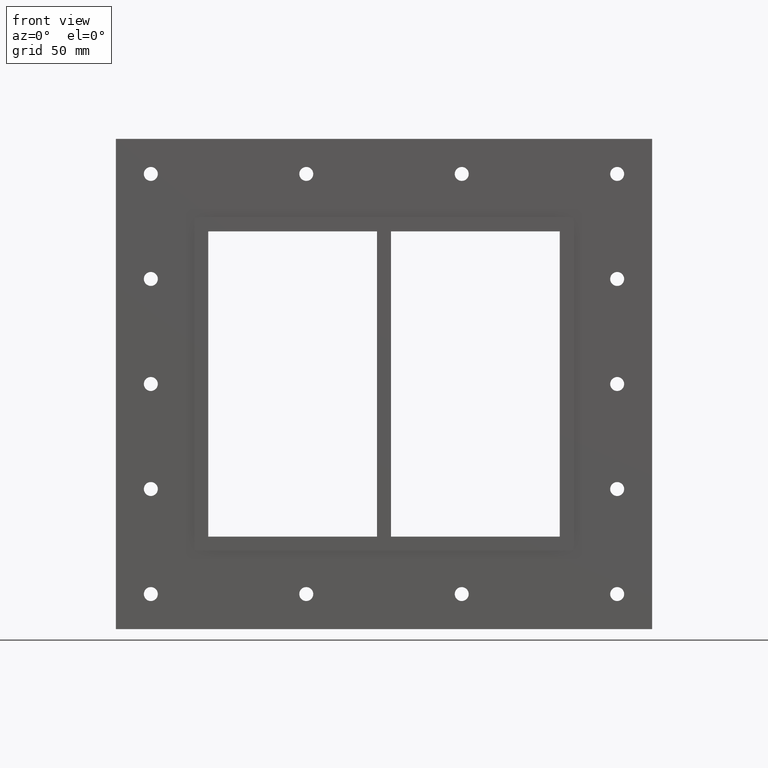
[diagram: clean part render]
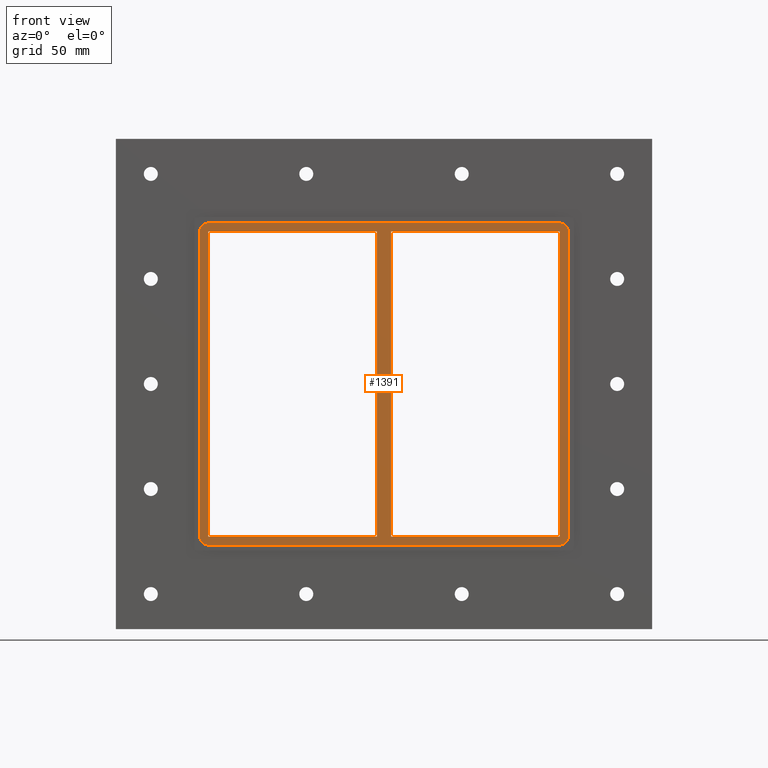
[diagram: same view with one face highlighted and labeled with its STEP entity id]
A machine part, front view. The second image highlights one B-rep face of the part: STEP entity #1391.
In plain terms, the highlighted planar face has unit normal (0, 1, 0).
Its self-contained STEP definition (entity closure, byte-faithful):
#465=CARTESIAN_POINT('',(-5.000000000001332,-3.0,-109.00000000000003));
#466=VERTEX_POINT('',#465);
#467=CARTESIAN_POINT('',(-5.000000000001368,-3.0,108.99999999999999));
#468=VERTEX_POINT('',#467);
#469=CARTESIAN_POINT('',(-5.000000000001332,-3.0,-109.00000000000003));
#470=DIRECTION('',(0.0,0.0,1.0));
#471=VECTOR('',#470,218.0);
#472=LINE('',#469,#471);
#473=EDGE_CURVE('',#466,#468,#472,.T.);
#505=CARTESIAN_POINT('',(5.0,-3.0,108.99999999999999));
#506=VERTEX_POINT('',#505);
#507=CARTESIAN_POINT('',(5.0,-3.0,-108.9999999999818));
#508=VERTEX_POINT('',#507);
#509=CARTESIAN_POINT('',(5.0,-3.0,108.99999999999999));
#510=DIRECTION('',(0.0,0.0,-1.0));
#511=VECTOR('',#510,217.99999999998178);
#512=LINE('',#509,#511);
#513=EDGE_CURVE('',#506,#508,#512,.T.);
#554=CARTESIAN_POINT('',(-125.50000000000003,-3.0,-109.00000000000003));
#555=VERTEX_POINT('',#554);
#562=CARTESIAN_POINT('',(-5.000000000001329,-3.0,-109.00000000000003));
#563=DIRECTION('',(-1.0,0.0,0.0));
#564=VECTOR('',#563,120.49999999999869);
#565=LINE('',#562,#564);
#566=EDGE_CURVE('',#466,#555,#565,.T.);
#577=CARTESIAN_POINT('',(125.49999999999999,-3.0,-109.00000000000003));
#578=VERTEX_POINT('',#577);
#579=CARTESIAN_POINT('',(125.49999999999999,-3.0,-109.00000000000003));
#580=DIRECTION('',(-1.0,0.0,0.0));
#581=VECTOR('',#580,120.49999999999999);
#582=LINE('',#579,#581);
#583=EDGE_CURVE('',#578,#508,#582,.T.);
#616=CARTESIAN_POINT('',(125.49999999999999,-3.0,108.99999999999999));
#617=VERTEX_POINT('',#616);
#624=CARTESIAN_POINT('',(5.0,-3.0,108.99999999999999));
#625=DIRECTION('',(1.0,0.0,0.0));
#626=VECTOR('',#625,120.5);
#627=LINE('',#624,#626);
#628=EDGE_CURVE('',#506,#617,#627,.T.);
#639=CARTESIAN_POINT('',(-125.50000000000003,-3.0,108.99999999999999));
#640=VERTEX_POINT('',#639);
#641=CARTESIAN_POINT('',(-125.50000000000003,-3.0,108.99999999999999));
#642=DIRECTION('',(1.0,0.0,0.0));
#643=VECTOR('',#642,120.49999999999866);
#644=LINE('',#641,#643);
#645=EDGE_CURVE('',#640,#468,#644,.T.);
#1049=CARTESIAN_POINT('',(-125.5,-3.0,-109.00000000000003));
#1050=DIRECTION('',(0.0,0.0,1.0));
#1051=VECTOR('',#1050,218.0);
#1052=LINE('',#1049,#1051);
#1053=EDGE_CURVE('',#555,#640,#1052,.T.);
#1064=CARTESIAN_POINT('',(125.50000000000003,-3.0,115.0));
#1065=VERTEX_POINT('',#1064);
#1072=CARTESIAN_POINT('',(131.5,-3.0,109.0));
#1073=VERTEX_POINT('',#1072);
#1074=CARTESIAN_POINT('',(125.5,-3.0,109.0));
#1075=DIRECTION('',(0.0,1.0,0.0));
#1076=DIRECTION('',(0.70710678118655,0.0,0.707106781186545));
#1077=AXIS2_PLACEMENT_3D('',#1074,#1075,#1076);
#1078=CIRCLE('',#1077,6.000000000000001);
#1079=EDGE_CURVE('',#1065,#1073,#1078,.T.);
#1129=CARTESIAN_POINT('',(131.5,-3.0,-108.99999999999999));
#1130=VERTEX_POINT('',#1129);
#1131=CARTESIAN_POINT('',(131.5,-3.0,-109.0));
#1132=DIRECTION('',(0.0,0.0,1.0));
#1133=VECTOR('',#1132,218.0);
#1134=LINE('',#1131,#1133);
#1135=EDGE_CURVE('',#1130,#1073,#1134,.T.);
#1176=CARTESIAN_POINT('',(-125.5,-3.0,115.0));
#1177=VERTEX_POINT('',#1176);
#1184=CARTESIAN_POINT('',(125.5,-3.0,115.0));
#1185=DIRECTION('',(-1.0,0.0,0.0));
#1186=VECTOR('',#1185,251.0);
#1187=LINE('',#1184,#1186);
#1188=EDGE_CURVE('',#1065,#1177,#1187,.T.);
#1201=CARTESIAN_POINT('',(125.5,-3.0,-115.0));
#1202=VERTEX_POINT('',#1201);
#1203=CARTESIAN_POINT('',(125.5,-3.0,-108.99999999999999));
#1204=DIRECTION('',(0.0,1.0,0.0));
#1205=DIRECTION('',(0.707106781186548,0.0,-0.707106781186548));
#1206=AXIS2_PLACEMENT_3D('',#1203,#1204,#1205);
#1207=CIRCLE('',#1206,6.000000000000002);
#1208=EDGE_CURVE('',#1130,#1202,#1207,.T.);
#1250=CARTESIAN_POINT('',(-131.5,-3.0,108.99999999999999));
#1251=VERTEX_POINT('',#1250);
#1258=CARTESIAN_POINT('',(-125.5,-3.0,108.99999999999999));
#1259=DIRECTION('',(0.0,1.0,0.0));
#1260=DIRECTION('',(-0.707106781186548,0.0,0.707106781186548));
#1261=AXIS2_PLACEMENT_3D('',#1258,#1259,#1260);
#1262=CIRCLE('',#1261,6.000000000000002);
#1263=EDGE_CURVE('',#1251,#1177,#1262,.T.);
#1276=CARTESIAN_POINT('',(-125.50000000000003,-3.0,-115.0));
#1277=VERTEX_POINT('',#1276);
#1278=CARTESIAN_POINT('',(-125.5,-3.0,-115.0));
#1279=DIRECTION('',(1.0,0.0,0.0));
#1280=VECTOR('',#1279,251.0);
#1281=LINE('',#1278,#1280);
#1282=EDGE_CURVE('',#1277,#1202,#1281,.T.);
#1323=CARTESIAN_POINT('',(-131.5,-3.0,-108.99999999999999));
#1324=VERTEX_POINT('',#1323);
#1331=CARTESIAN_POINT('',(-131.5,-3.0,109.0));
#1332=DIRECTION('',(0.0,0.0,-1.0));
#1333=VECTOR('',#1332,218.0);
#1334=LINE('',#1331,#1333);
#1335=EDGE_CURVE('',#1251,#1324,#1334,.T.);
#1348=CARTESIAN_POINT('',(-125.5,-3.0,-108.99999999999999));
#1349=DIRECTION('',(0.0,1.0,0.0));
#1350=DIRECTION('',(-0.707106781186548,0.0,-0.707106781186548));
#1351=AXIS2_PLACEMENT_3D('',#1348,#1349,#1350);
#1352=CIRCLE('',#1351,6.000000000000002);
#1353=EDGE_CURVE('',#1277,#1324,#1352,.T.);
#1359=CARTESIAN_POINT('',(0.0,-3.0,0.0));
#1360=DIRECTION('',(0.0,1.0,0.0));
#1361=DIRECTION('',(0.0,0.0,1.0));
#1362=AXIS2_PLACEMENT_3D('',#1359,#1360,#1361);
#1363=PLANE('',#1362);
#1364=ORIENTED_EDGE('',*,*,#1208,.F.);
#1365=ORIENTED_EDGE('',*,*,#1135,.T.);
#1366=ORIENTED_EDGE('',*,*,#1079,.F.);
#1367=ORIENTED_EDGE('',*,*,#1188,.T.);
#1368=ORIENTED_EDGE('',*,*,#1263,.F.);
#1369=ORIENTED_EDGE('',*,*,#1335,.T.);
#1370=ORIENTED_EDGE('',*,*,#1353,.F.);
#1371=ORIENTED_EDGE('',*,*,#1282,.T.);
#1372=EDGE_LOOP('',(#1364,#1365,#1366,#1367,#1368,#1369,#1370,#1371));
#1373=FACE_OUTER_BOUND('',#1372,.T.);
#1374=ORIENTED_EDGE('',*,*,#566,.T.);
#1375=ORIENTED_EDGE('',*,*,#1053,.T.);
#1376=ORIENTED_EDGE('',*,*,#645,.T.);
#1377=ORIENTED_EDGE('',*,*,#473,.F.);
#1378=EDGE_LOOP('',(#1374,#1375,#1376,#1377));
#1379=FACE_BOUND('',#1378,.T.);
#1380=ORIENTED_EDGE('',*,*,#513,.F.);
#1381=ORIENTED_EDGE('',*,*,#628,.T.);
#1382=CARTESIAN_POINT('',(125.49999999999999,-3.0,108.99999999999999));
#1383=DIRECTION('',(0.0,0.0,-1.0));
#1384=VECTOR('',#1383,218.0);
#1385=LINE('',#1382,#1384);
#1386=EDGE_CURVE('',#617,#578,#1385,.T.);
#1387=ORIENTED_EDGE('',*,*,#1386,.T.);
#1388=ORIENTED_EDGE('',*,*,#583,.T.);
#1389=EDGE_LOOP('',(#1380,#1381,#1387,#1388));
#1390=FACE_BOUND('',#1389,.T.);
#1391=ADVANCED_FACE('',(#1373,#1379,#1390),#1363,.F.);